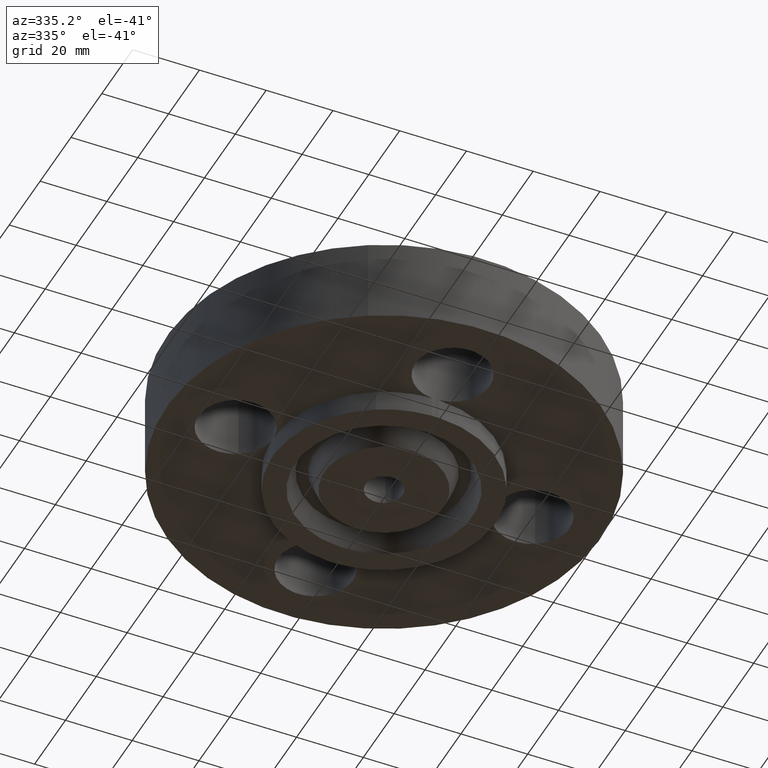
[diagram: clean part render]
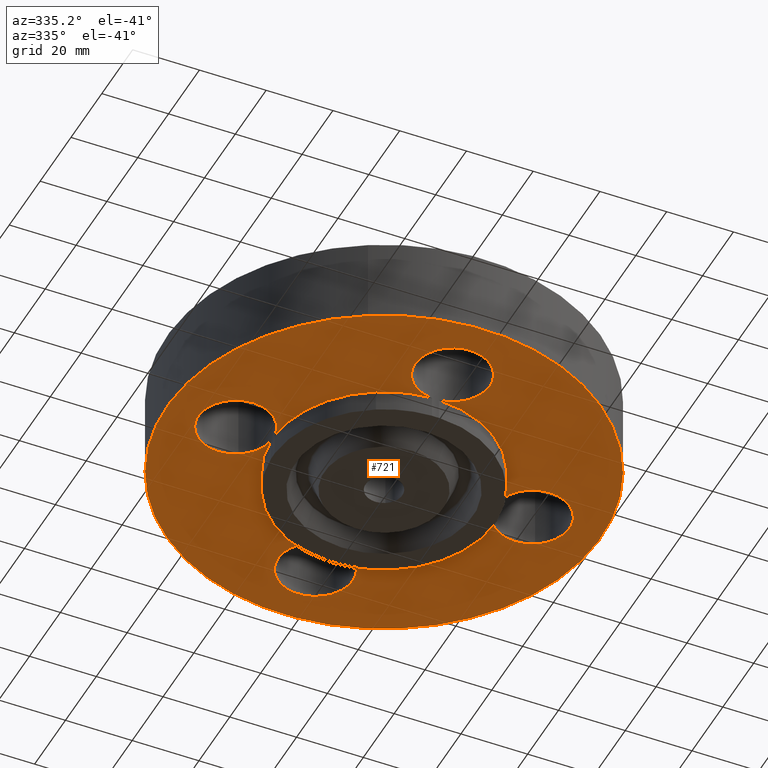
[diagram: same view with one face highlighted and labeled with its STEP entity id]
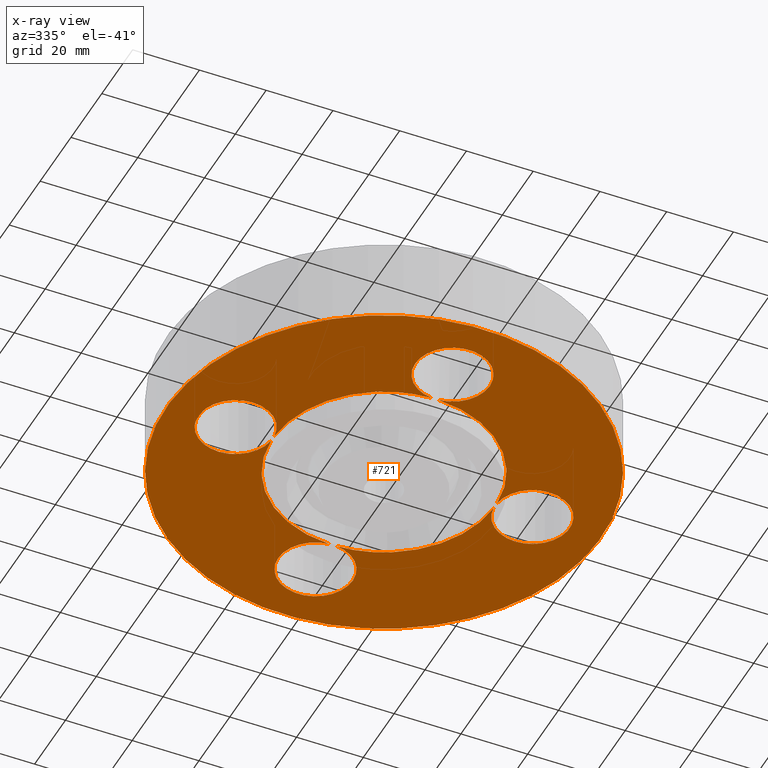
[diagram: x-ray of the same camera — body ghosted, the highlighted face saturated]
A machine part, auxiliary view. The second image highlights one B-rep face of the part: STEP entity #721.
The next image is the same camera in x-ray: the body ghosted, the highlighted face saturated — about 0% of this face is hidden behind the body in this view.
In plain terms, the highlighted planar face has unit normal (0, 0, -1).
Its self-contained STEP definition (entity closure, byte-faithful):
#51=AXIS2_PLACEMENT_3D('Circle Axis2P3D',#49,#50,$) ;
#77=AXIS2_PLACEMENT_3D('Circle Axis2P3D',#75,#76,$) ;
#105=AXIS2_PLACEMENT_3D('Circle Axis2P3D',#103,#104,$) ;
#131=AXIS2_PLACEMENT_3D('Circle Axis2P3D',#129,#130,$) ;
#162=AXIS2_PLACEMENT_3D('Circle Axis2P3D',#160,#161,$) ;
#197=AXIS2_PLACEMENT_3D('Circle Axis2P3D',#195,#196,$) ;
#505=AXIS2_PLACEMENT_3D('Circle Axis2P3D',#503,#504,$) ;
#524=AXIS2_PLACEMENT_3D('Circle Axis2P3D',#522,#523,$) ;
#566=AXIS2_PLACEMENT_3D('Circle Axis2P3D',#564,#565,$) ;
#585=AXIS2_PLACEMENT_3D('Circle Axis2P3D',#583,#584,$) ;
#618=AXIS2_PLACEMENT_3D('Circle Axis2P3D',#616,#617,$) ;
#638=AXIS2_PLACEMENT_3D('Plane Axis2P3D',#635,#636,#637) ;
#646=AXIS2_PLACEMENT_3D('Circle Axis2P3D',#644,#645,$) ;
#653=AXIS2_PLACEMENT_3D('Circle Axis2P3D',#651,#652,$) ;
#660=AXIS2_PLACEMENT_3D('Circle Axis2P3D',#658,#659,$) ;
#665=AXIS2_PLACEMENT_3D('Circle Axis2P3D',#663,#664,$) ;
#672=AXIS2_PLACEMENT_3D('Circle Axis2P3D',#670,#671,$) ;
#679=AXIS2_PLACEMENT_3D('Circle Axis2P3D',#677,#678,$) ;
#684=AXIS2_PLACEMENT_3D('Circle Axis2P3D',#682,#683,$) ;
#691=AXIS2_PLACEMENT_3D('Circle Axis2P3D',#689,#690,$) ;
#698=AXIS2_PLACEMENT_3D('Circle Axis2P3D',#696,#697,$) ;
#44=CARTESIAN_POINT('Vertex',(-0.386136327233,1.96094723699,0.)) ;
#49=CARTESIAN_POINT('Axis2P3D Location',(0.,1.75000000001,0.)) ;
#53=CARTESIAN_POINT('Vertex',(0.386136327233,1.53905276302,0.)) ;
#75=CARTESIAN_POINT('Axis2P3D Location',(0.,1.75000000001,0.)) ;
#79=CARTESIAN_POINT('Vertex',(0.0405576089,1.31187321429,0.)) ;
#100=CARTESIAN_POINT('Vertex',(-0.0405576089,1.31187321429,0.)) ;
#103=CARTESIAN_POINT('Axis2P3D Location',(0.,1.75000000001,0.)) ;
#129=CARTESIAN_POINT('Axis2P3D Location',(0.,0.,0.)) ;
#133=CARTESIAN_POINT('Vertex',(0.629246019421,1.15182711249,0.)) ;
#160=CARTESIAN_POINT('Axis2P3D Location',(0.,0.,1.39870617276E-016)) ;
#164=CARTESIAN_POINT('Vertex',(-1.22732937883,-2.24661135845,2.79741234551E-016)) ;
#166=CARTESIAN_POINT('Vertex',(1.22732937883,2.24661135845,2.79741234551E-016)) ;
#195=CARTESIAN_POINT('Axis2P3D Location',(0.,0.,1.39870617276E-016)) ;
#500=CARTESIAN_POINT('Vertex',(-0.629246019421,-1.15182711249,0.)) ;
#503=CARTESIAN_POINT('Axis2P3D Location',(0.,0.,0.)) ;
#507=CARTESIAN_POINT('Vertex',(-1.31187321429,-0.0405576089,0.)) ;
#522=CARTESIAN_POINT('Axis2P3D Location',(0.,0.,0.)) ;
#526=CARTESIAN_POINT('Vertex',(-1.31187321429,0.0405576089,0.)) ;
#561=CARTESIAN_POINT('Vertex',(1.31187321429,-0.0405576089,0.)) ;
#564=CARTESIAN_POINT('Axis2P3D Location',(0.,0.,0.)) ;
#568=CARTESIAN_POINT('Vertex',(0.0405576089,-1.31187321429,0.)) ;
#583=CARTESIAN_POINT('Axis2P3D Location',(0.,0.,0.)) ;
#587=CARTESIAN_POINT('Vertex',(-0.0405576089,-1.31187321429,0.)) ;
#616=CARTESIAN_POINT('Axis2P3D Location',(0.,0.,0.)) ;
#620=CARTESIAN_POINT('Vertex',(1.31187321429,0.0405576089,0.)) ;
#635=CARTESIAN_POINT('Axis2P3D Location',(0.,1.31250000001,0.)) ;
#644=CARTESIAN_POINT('Axis2P3D Location',(1.75000000001,0.,0.)) ;
#648=CARTESIAN_POINT('Vertex',(1.53905276302,-0.386136327233,0.)) ;
#651=CARTESIAN_POINT('Axis2P3D Location',(1.75000000001,-2.79741234551E-016,0.)) ;
#655=CARTESIAN_POINT('Vertex',(1.96094723699,0.386136327233,0.)) ;
#658=CARTESIAN_POINT('Axis2P3D Location',(1.75000000001,0.,0.)) ;
#663=CARTESIAN_POINT('Axis2P3D Location',(-1.75000000001,-2.79741234551E-016,0.)) ;
#667=CARTESIAN_POINT('Vertex',(-1.53905276302,0.386136327233,0.)) ;
#670=CARTESIAN_POINT('Axis2P3D Location',(-1.75000000001,-2.79741234551E-016,0.)) ;
#674=CARTESIAN_POINT('Vertex',(-1.96094723699,-0.386136327233,0.)) ;
#677=CARTESIAN_POINT('Axis2P3D Location',(-1.75000000001,-2.79741234551E-016,0.)) ;
#682=CARTESIAN_POINT('Axis2P3D Location',(2.44773580232E-016,-1.75000000001,0.)) ;
#686=CARTESIAN_POINT('Vertex',(-0.386136327233,-1.53905276302,0.)) ;
#689=CARTESIAN_POINT('Axis2P3D Location',(2.79741234551E-016,-1.75000000001,0.)) ;
#693=CARTESIAN_POINT('Vertex',(0.386136327233,-1.96094723699,0.)) ;
#696=CARTESIAN_POINT('Axis2P3D Location',(2.44773580232E-016,-1.75000000001,0.)) ;
#50=DIRECTION('Axis2P3D Direction',(0.,-0.,-0.0393700787402)) ;
#76=DIRECTION('Axis2P3D Direction',(0.,-0.,-0.0393700787402)) ;
#104=DIRECTION('Axis2P3D Direction',(0.,-0.,-0.0393700787402)) ;
#130=DIRECTION('Axis2P3D Direction',(0.,0.,-0.0393700787402)) ;
#161=DIRECTION('Axis2P3D Direction',(0.,0.,-0.0393700787402)) ;
#196=DIRECTION('Axis2P3D Direction',(0.,0.,-0.0393700787402)) ;
#504=DIRECTION('Axis2P3D Direction',(0.,0.,-0.0393700787402)) ;
#523=DIRECTION('Axis2P3D Direction',(0.,0.,-0.0393700787402)) ;
#565=DIRECTION('Axis2P3D Direction',(0.,0.,-0.0393700787402)) ;
#584=DIRECTION('Axis2P3D Direction',(0.,0.,-0.0393700787402)) ;
#617=DIRECTION('Axis2P3D Direction',(0.,0.,-0.0393700787402)) ;
#636=DIRECTION('Axis2P3D Direction',(0.,0.,-0.0393700787402)) ;
#637=DIRECTION('Axis2P3D XDirection',(0.0393700787402,0.,0.)) ;
#645=DIRECTION('Axis2P3D Direction',(0.,0.,-0.0393700787402)) ;
#652=DIRECTION('Axis2P3D Direction',(0.,0.,-0.0393700787402)) ;
#659=DIRECTION('Axis2P3D Direction',(0.,0.,-0.0393700787402)) ;
#664=DIRECTION('Axis2P3D Direction',(0.,0.,-0.0393700787402)) ;
#671=DIRECTION('Axis2P3D Direction',(0.,0.,-0.0393700787402)) ;
#678=DIRECTION('Axis2P3D Direction',(0.,0.,-0.0393700787402)) ;
#683=DIRECTION('Axis2P3D Direction',(0.,0.,-0.0393700787402)) ;
#690=DIRECTION('Axis2P3D Direction',(0.,0.,-0.0393700787402)) ;
#697=DIRECTION('Axis2P3D Direction',(0.,0.,-0.0393700787402)) ;
#641=ORIENTED_EDGE('',*,*,#168,.T.) ;
#642=ORIENTED_EDGE('',*,*,#199,.T.) ;
#702=ORIENTED_EDGE('',*,*,#570,.F.) ;
#703=ORIENTED_EDGE('',*,*,#650,.F.) ;
#704=ORIENTED_EDGE('',*,*,#657,.F.) ;
#705=ORIENTED_EDGE('',*,*,#662,.F.) ;
#706=ORIENTED_EDGE('',*,*,#622,.F.) ;
#707=ORIENTED_EDGE('',*,*,#135,.F.) ;
#708=ORIENTED_EDGE('',*,*,#81,.F.) ;
#709=ORIENTED_EDGE('',*,*,#55,.F.) ;
#710=ORIENTED_EDGE('',*,*,#107,.F.) ;
#711=ORIENTED_EDGE('',*,*,#528,.F.) ;
#712=ORIENTED_EDGE('',*,*,#669,.F.) ;
#713=ORIENTED_EDGE('',*,*,#676,.F.) ;
#714=ORIENTED_EDGE('',*,*,#681,.F.) ;
#715=ORIENTED_EDGE('',*,*,#509,.F.) ;
#716=ORIENTED_EDGE('',*,*,#589,.F.) ;
#717=ORIENTED_EDGE('',*,*,#688,.F.) ;
#718=ORIENTED_EDGE('',*,*,#695,.F.) ;
#719=ORIENTED_EDGE('',*,*,#700,.F.) ;
#720=FACE_BOUND('',#701,.T.) ;
#721=ADVANCED_FACE('PartBody',(#643,#720),#639,.T.) ;
#52=CIRCLE('generated circle',#51,0.440000000002) ;
#78=CIRCLE('generated circle',#77,0.440000000002) ;
#106=CIRCLE('generated circle',#105,0.440000000002) ;
#132=CIRCLE('generated circle',#131,1.31250000001) ;
#163=CIRCLE('generated circle',#162,2.56000000001) ;
#198=CIRCLE('generated circle',#197,2.56000000001) ;
#506=CIRCLE('generated circle',#505,1.31250000001) ;
#525=CIRCLE('generated circle',#524,1.31250000001) ;
#567=CIRCLE('generated circle',#566,1.31250000001) ;
#586=CIRCLE('generated circle',#585,1.31250000001) ;
#619=CIRCLE('generated circle',#618,1.31250000001) ;
#647=CIRCLE('generated circle',#646,0.440000000002) ;
#654=CIRCLE('generated circle',#653,0.440000000002) ;
#661=CIRCLE('generated circle',#660,0.440000000002) ;
#666=CIRCLE('generated circle',#665,0.440000000002) ;
#673=CIRCLE('generated circle',#672,0.440000000002) ;
#680=CIRCLE('generated circle',#679,0.440000000002) ;
#685=CIRCLE('generated circle',#684,0.440000000002) ;
#692=CIRCLE('generated circle',#691,0.440000000002) ;
#699=CIRCLE('generated circle',#698,0.440000000002) ;
#55=EDGE_CURVE('',#45,#54,#52,.T.) ;
#81=EDGE_CURVE('',#54,#80,#78,.T.) ;
#107=EDGE_CURVE('',#101,#45,#106,.T.) ;
#135=EDGE_CURVE('',#80,#134,#132,.T.) ;
#168=EDGE_CURVE('',#165,#167,#163,.T.) ;
#199=EDGE_CURVE('',#167,#165,#198,.T.) ;
#509=EDGE_CURVE('',#501,#508,#506,.T.) ;
#528=EDGE_CURVE('',#527,#101,#525,.T.) ;
#570=EDGE_CURVE('',#562,#569,#567,.T.) ;
#589=EDGE_CURVE('',#588,#501,#586,.T.) ;
#622=EDGE_CURVE('',#134,#621,#619,.T.) ;
#650=EDGE_CURVE('',#649,#562,#647,.T.) ;
#657=EDGE_CURVE('',#656,#649,#654,.T.) ;
#662=EDGE_CURVE('',#621,#656,#661,.T.) ;
#669=EDGE_CURVE('',#668,#527,#666,.T.) ;
#676=EDGE_CURVE('',#675,#668,#673,.T.) ;
#681=EDGE_CURVE('',#508,#675,#680,.T.) ;
#688=EDGE_CURVE('',#687,#588,#685,.T.) ;
#695=EDGE_CURVE('',#694,#687,#692,.T.) ;
#700=EDGE_CURVE('',#569,#694,#699,.T.) ;
#640=EDGE_LOOP('',(#641,#642)) ;
#701=EDGE_LOOP('',(#702,#703,#704,#705,#706,#707,#708,#709,#710,#711,#712,#713,#714,#715,#716,#717,#718,#719)) ;
#643=FACE_OUTER_BOUND('',#640,.T.) ;
#639=PLANE('',#638) ;
#45=VERTEX_POINT('',#44) ;
#54=VERTEX_POINT('',#53) ;
#80=VERTEX_POINT('',#79) ;
#101=VERTEX_POINT('',#100) ;
#134=VERTEX_POINT('',#133) ;
#165=VERTEX_POINT('',#164) ;
#167=VERTEX_POINT('',#166) ;
#501=VERTEX_POINT('',#500) ;
#508=VERTEX_POINT('',#507) ;
#527=VERTEX_POINT('',#526) ;
#562=VERTEX_POINT('',#561) ;
#569=VERTEX_POINT('',#568) ;
#588=VERTEX_POINT('',#587) ;
#621=VERTEX_POINT('',#620) ;
#649=VERTEX_POINT('',#648) ;
#656=VERTEX_POINT('',#655) ;
#668=VERTEX_POINT('',#667) ;
#675=VERTEX_POINT('',#674) ;
#687=VERTEX_POINT('',#686) ;
#694=VERTEX_POINT('',#693) ;